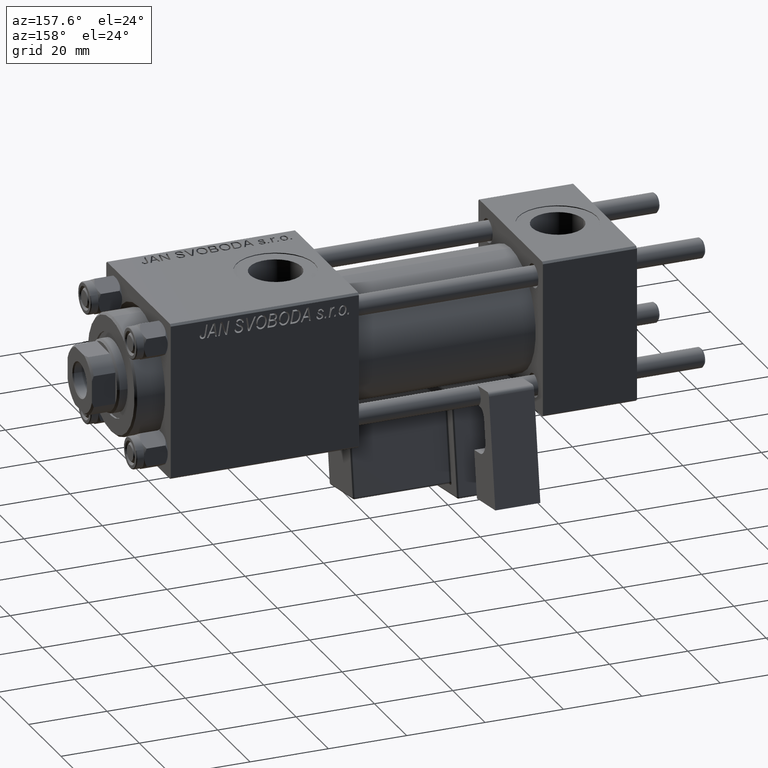
[diagram: clean part render]
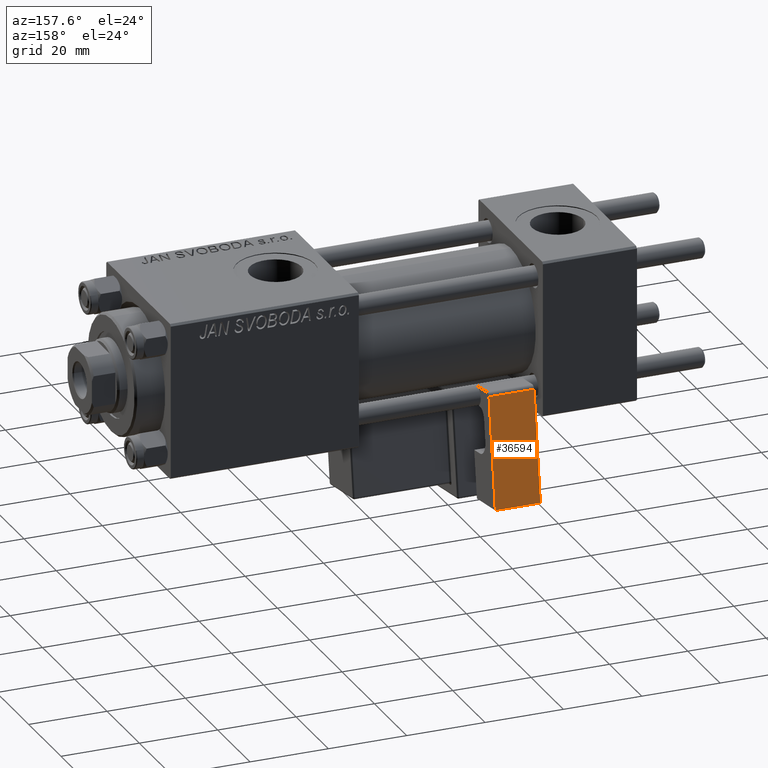
[diagram: same view with one face highlighted and labeled with its STEP entity id]
A machine part, auxiliary view. The second image highlights one B-rep face of the part: STEP entity #36594.
In plain terms, the highlighted planar face has unit normal (0, -0.9902, -0.1399).
Its self-contained STEP definition (entity closure, byte-faithful):
#3562 = CARTESIAN_POINT ( 'NONE',  ( -5.750000000000000000, 5.750000000000000000, 28.00000000000000000 ) ) ;
#7959 = CARTESIAN_POINT ( 'NONE',  ( 5.750000000000000000, 5.750000000000001776, 28.00000000000000000 ) ) ;
#7967 = VERTEX_POINT ( 'NONE', #7959 ) ;
#8593 = LINE ( 'NONE', #48524, #22155 ) ;
#11291 = VECTOR ( 'NONE', #51475, 1000.000000000000000 ) ;
#12951 = EDGE_LOOP ( 'NONE', ( #51485, #32299, #16880, #28713 ) ) ;
#13007 = VERTEX_POINT ( 'NONE', #3562 ) ;
#16880 = ORIENTED_EDGE ( 'NONE', *, *, #44750, .T. ) ;
#17447 = LINE ( 'NONE', #21140, #39838 ) ;
#18544 = VERTEX_POINT ( 'NONE', #30626 ) ;
#19729 = LINE ( 'NONE', #43406, #43875 ) ;
#20694 = DIRECTION ( 'NONE',  ( 1.508455196501571183E-16, -1.000000000000000000, 0.000000000000000000 ) ) ;
#21140 = CARTESIAN_POINT ( 'NONE',  ( -5.750000000000000000, 5.750000000000000000, 12.00000000000000000 ) ) ;
#22155 = VECTOR ( 'NONE', #24604, 1000.000000000000000 ) ;
#24604 = DIRECTION ( 'NONE',  ( -1.000000000000000000, -1.508455196501571429E-16, -0.000000000000000000 ) ) ;
#25335 = DIRECTION ( 'NONE',  ( -0.000000000000000000, -0.000000000000000000, -1.000000000000000000 ) ) ;
#28713 = ORIENTED_EDGE ( 'NONE', *, *, #33443, .T. ) ;
#30626 = CARTESIAN_POINT ( 'NONE',  ( -5.750000000000000000, 5.750000000000000000, 0.000000000000000000 ) ) ;
#30960 = CARTESIAN_POINT ( 'NONE',  ( -5.750000000000000000, 5.750000000000000000, 28.00000000000000000 ) ) ;
#31789 = CARTESIAN_POINT ( 'NONE',  ( 5.750000000000000000, 5.750000000000001776, 0.000000000000000000 ) ) ;
#32299 = ORIENTED_EDGE ( 'NONE', *, *, #48328, .T. ) ;
#32351 = AXIS2_PLACEMENT_3D ( 'NONE', #44889, #20694, #36739 ) ;
#33443 = EDGE_CURVE ( 'NONE', #35301, #18544, #8593, .T. ) ;
#35301 = VERTEX_POINT ( 'NONE', #31789 ) ;
#36594 = ADVANCED_FACE ( 'NONE', ( #48043 ), #51985, .F. ) ;
#36739 = DIRECTION ( 'NONE',  ( 1.000000000000000000, 1.508455196501571183E-16, 0.000000000000000000 ) ) ;
#39838 = VECTOR ( 'NONE', #25335, 1000.000000000000000 ) ;
#43406 = CARTESIAN_POINT ( 'NONE',  ( 5.750000000000000000, 5.750000000000001776, 12.00000000000000000 ) ) ;
#43875 = VECTOR ( 'NONE', #51293, 1000.000000000000000 ) ;
#44750 = EDGE_CURVE ( 'NONE', #7967, #35301, #19729, .T. ) ;
#44889 = CARTESIAN_POINT ( 'NONE',  ( -5.750000000000000000, 5.750000000000000000, 12.00000000000000000 ) ) ;
#48043 = FACE_OUTER_BOUND ( 'NONE', #12951, .T. ) ;
#48328 = EDGE_CURVE ( 'NONE', #13007, #7967, #50693, .T. ) ;
#48524 = CARTESIAN_POINT ( 'NONE',  ( -5.750000000000000000, 5.750000000000000000, 0.000000000000000000 ) ) ;
#48801 = EDGE_CURVE ( 'NONE', #13007, #18544, #17447, .T. ) ;
#50693 = LINE ( 'NONE', #30960, #11291 ) ;
#51293 = DIRECTION ( 'NONE',  ( -0.000000000000000000, -0.000000000000000000, -1.000000000000000000 ) ) ;
#51475 = DIRECTION ( 'NONE',  ( 1.000000000000000000, 1.508455196501571183E-16, -0.000000000000000000 ) ) ;
#51485 = ORIENTED_EDGE ( 'NONE', *, *, #48801, .F. ) ;
#51985 = PLANE ( 'NONE',  #32351 ) ;